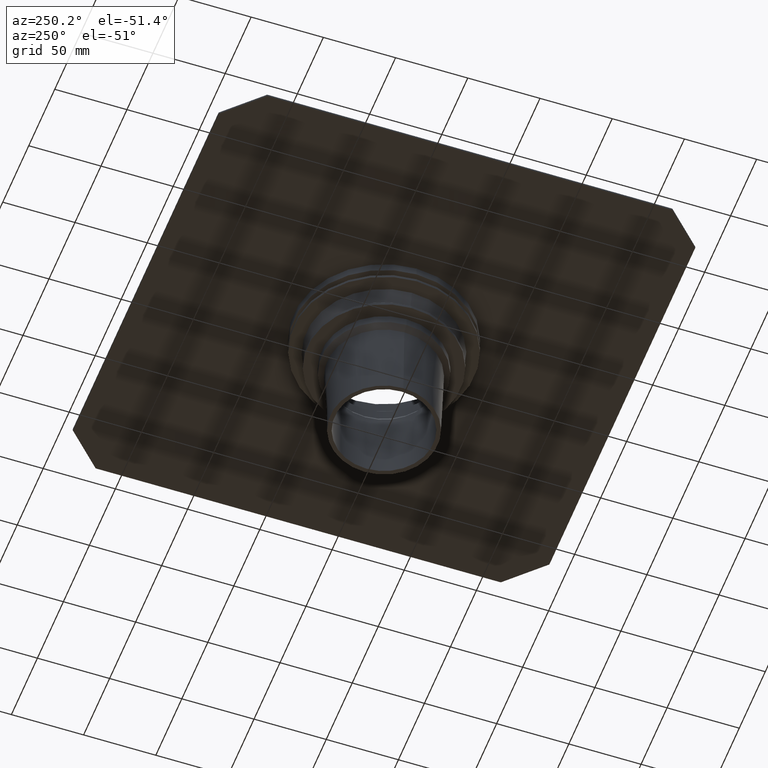
[diagram: clean part render]
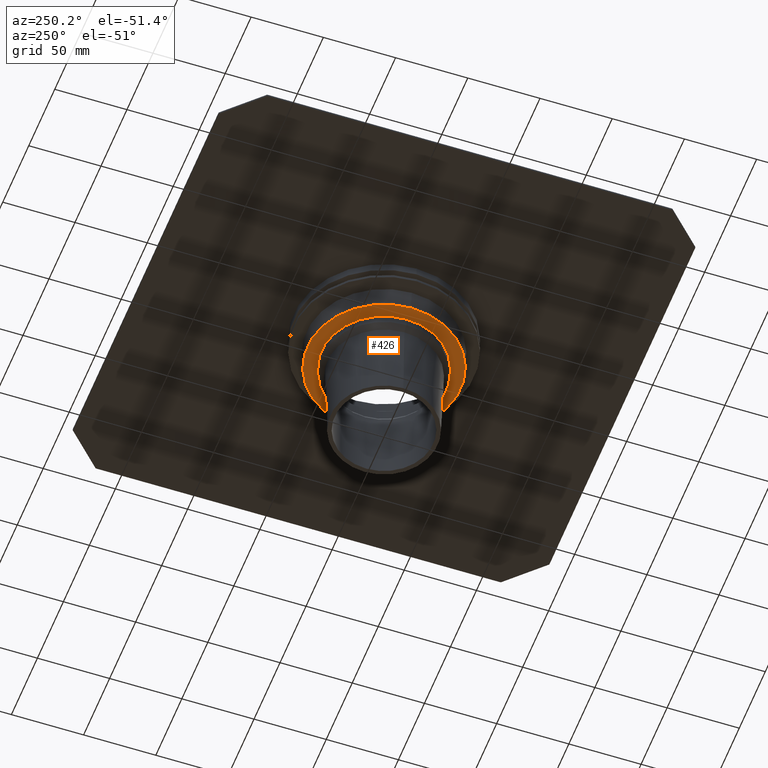
[diagram: same view with one face highlighted and labeled with its STEP entity id]
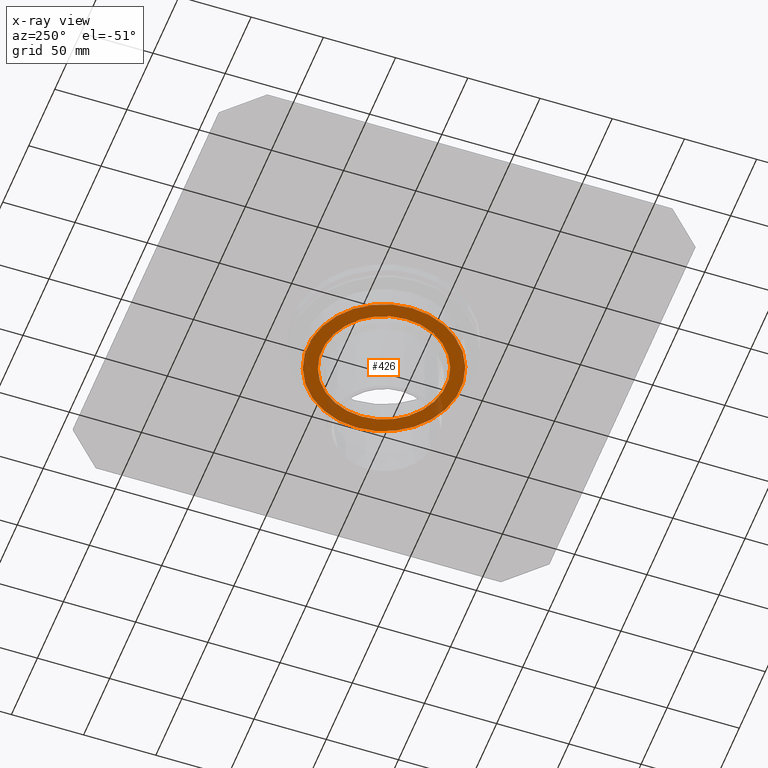
[diagram: x-ray of the same camera — body ghosted, the highlighted face saturated]
A machine part, auxiliary view. The second image highlights one B-rep face of the part: STEP entity #426.
The next image is the same camera in x-ray: the body ghosted, the highlighted face saturated — about 7% of this face is hidden behind the body in this view.
In plain terms, the highlighted planar face has unit normal (0, 0, -1).
Its self-contained STEP definition (entity closure, byte-faithful):
#89=PLANE('',#485);
#150=ORIENTED_EDGE('',*,*,#223,.T.);
#151=ORIENTED_EDGE('',*,*,#222,.F.);
#222=EDGE_CURVE('',#260,#260,#282,.T.);
#223=EDGE_CURVE('',#261,#261,#283,.T.);
#260=VERTEX_POINT('',#725);
#261=VERTEX_POINT('',#728);
#282=CIRCLE('',#484,43.143);
#283=CIRCLE('',#486,52.998);
#324=EDGE_LOOP('',(#150));
#325=EDGE_LOOP('',(#151));
#378=FACE_BOUND('',#324,.T.);
#379=FACE_BOUND('',#325,.T.);
#426=ADVANCED_FACE('',(#378,#379),#89,.T.);
#484=AXIS2_PLACEMENT_3D('',#724,#598,#599);
#485=AXIS2_PLACEMENT_3D('',#726,#600,#601);
#486=AXIS2_PLACEMENT_3D('',#727,#602,#603);
#598=DIRECTION('',(0.,0.,-1.));
#599=DIRECTION('',(-1.,0.,0.));
#600=DIRECTION('',(0.,0.,-1.));
#601=DIRECTION('',(-1.,0.,0.));
#602=DIRECTION('',(0.,0.,-1.));
#603=DIRECTION('',(-1.,0.,0.));
#724=CARTESIAN_POINT('',(0.,0.,-30.));
#725=CARTESIAN_POINT('',(-43.143,0.,-30.));
#726=CARTESIAN_POINT('',(-43.143,0.,-30.));
#727=CARTESIAN_POINT('',(0.,0.,-30.));
#728=CARTESIAN_POINT('',(-52.998,0.,-30.));